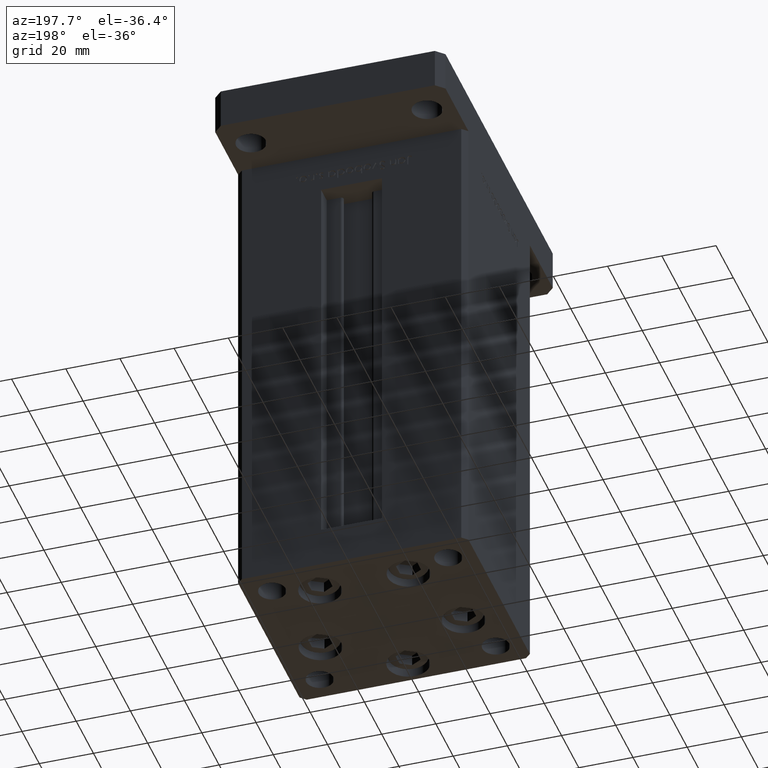
[diagram: clean part render]
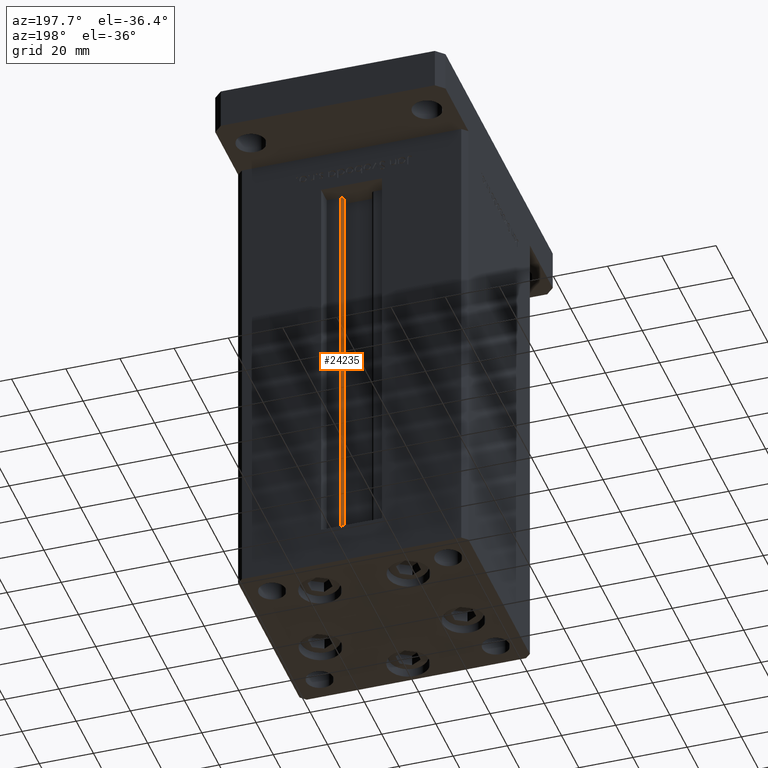
[diagram: same view with one face highlighted and labeled with its STEP entity id]
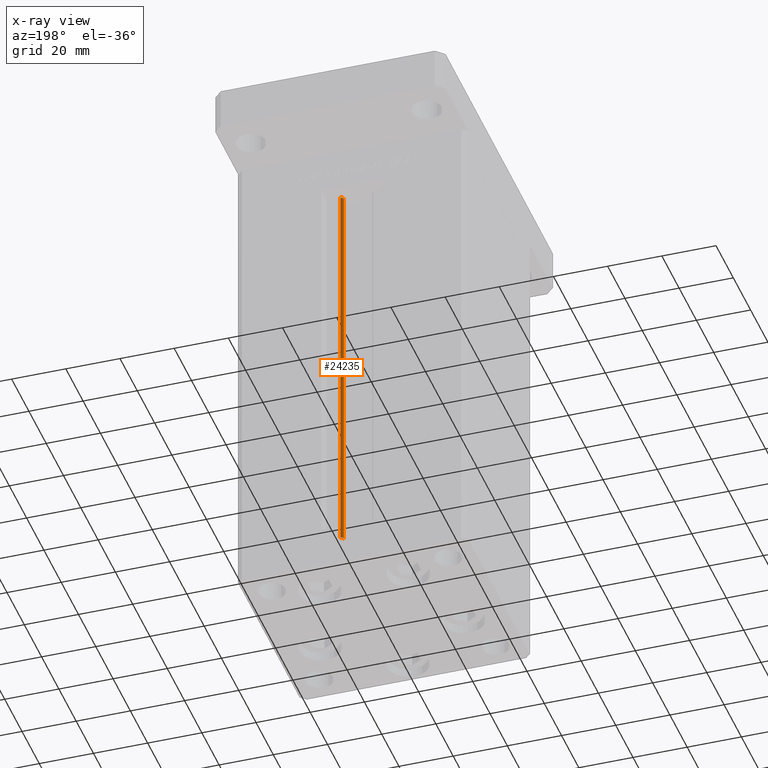
[diagram: x-ray of the same camera — body ghosted, the highlighted face saturated]
A machine part, auxiliary view. The second image highlights one B-rep face of the part: STEP entity #24235.
The next image is the same camera in x-ray: the body ghosted, the highlighted face saturated — about 0% of this face is hidden behind the body in this view.
In plain terms, the highlighted cylindrical surface (edge-blend (fillet) strip) has radius 0.9333 mm, axis along (0, 0, 1).
Its self-contained STEP definition (entity closure, byte-faithful):
#774 = CARTESIAN_POINT ( 'NONE',  ( 5.375042956467943611, 29.59999999999899245, 0.000000000000000000 ) ) ;
#1883 = ORIENTED_EDGE ( 'NONE', *, *, #11287, .F. ) ;
#2058 = CIRCLE ( 'NONE', #47931, 0.9333333333340015914 ) ;
#4121 = VECTOR ( 'NONE', #37700, 1000.000000000000000 ) ;
#4211 = CARTESIAN_POINT ( 'NONE',  ( 6.183333333333999704, 30.99999999999999289, 0.000000000000000000 ) ) ;
#4550 = ORIENTED_EDGE ( 'NONE', *, *, #37616, .T. ) ;
#5692 = DIRECTION ( 'NONE',  ( 0.000000000000000000, 0.000000000000000000, -1.000000000000000000 ) ) ;
#5784 = CARTESIAN_POINT ( 'NONE',  ( 6.183333333333999704, 30.99999999999999289, 148.5000000000000000 ) ) ;
#7223 = ORIENTED_EDGE ( 'NONE', *, *, #21924, .F. ) ;
#8713 = DIRECTION ( 'NONE',  ( -0.000000000000000000, -0.000000000000000000, -1.000000000000000000 ) ) ;
#10361 = CIRCLE ( 'NONE', #51099, 0.9333333333340015914 ) ;
#11287 = EDGE_CURVE ( 'NONE', #40228, #12335, #28031, .T. ) ;
#11687 = ORIENTED_EDGE ( 'NONE', *, *, #47937, .T. ) ;
#12335 = VERTEX_POINT ( 'NONE', #5784 ) ;
#14104 = CARTESIAN_POINT ( 'NONE',  ( 6.183333333333999704, 30.06666666666599141, 148.5000000000000000 ) ) ;
#15708 = EDGE_LOOP ( 'NONE', ( #1883, #7223, #11687, #4550 ) ) ;
#21747 = VERTEX_POINT ( 'NONE', #46755 ) ;
#21924 = EDGE_CURVE ( 'NONE', #21747, #40228, #10361, .T. ) ;
#24235 = ADVANCED_FACE ( 'NONE', ( #52205 ), #32103, .T. ) ;
#25591 = VECTOR ( 'NONE', #46078, 1000.000000000000000 ) ;
#28031 = LINE ( 'NONE', #40256, #4121 ) ;
#32103 = CYLINDRICAL_SURFACE ( 'NONE', #52911, 0.9333333333340015914 ) ;
#33917 = DIRECTION ( 'NONE',  ( 1.000000000000000000, 0.000000000000000000, 0.000000000000000000 ) ) ;
#35366 = DIRECTION ( 'NONE',  ( -0.000000000000000000, -0.000000000000000000, 1.000000000000000000 ) ) ;
#37616 = EDGE_CURVE ( 'NONE', #43182, #12335, #2058, .T. ) ;
#37700 = DIRECTION ( 'NONE',  ( -0.000000000000000000, -0.000000000000000000, 1.000000000000000000 ) ) ;
#40228 = VERTEX_POINT ( 'NONE', #4211 ) ;
#40256 = CARTESIAN_POINT ( 'NONE',  ( 6.183333333333999704, 30.99999999999999289, 0.000000000000000000 ) ) ;
#40474 = CARTESIAN_POINT ( 'NONE',  ( 6.183333333333999704, 30.06666666666599141, 0.000000000000000000 ) ) ;
#43182 = VERTEX_POINT ( 'NONE', #50583 ) ;
#46078 = DIRECTION ( 'NONE',  ( -0.000000000000000000, -0.000000000000000000, 1.000000000000000000 ) ) ;
#46755 = CARTESIAN_POINT ( 'NONE',  ( 5.375042956467943611, 29.59999999999899245, 0.000000000000000000 ) ) ;
#47931 = AXIS2_PLACEMENT_3D ( 'NONE', #14104, #5692, #50180 ) ;
#47937 = EDGE_CURVE ( 'NONE', #21747, #43182, #49601, .T. ) ;
#48660 = CARTESIAN_POINT ( 'NONE',  ( 6.183333333333999704, 30.06666666666599141, 0.000000000000000000 ) ) ;
#49601 = LINE ( 'NONE', #774, #25591 ) ;
#50180 = DIRECTION ( 'NONE',  ( 1.000000000000000000, 0.000000000000000000, 0.000000000000000000 ) ) ;
#50583 = CARTESIAN_POINT ( 'NONE',  ( 5.375042956467944499, 29.59999999999899245, 148.5000000000000000 ) ) ;
#51099 = AXIS2_PLACEMENT_3D ( 'NONE', #40474, #8713, #33917 ) ;
#51946 = DIRECTION ( 'NONE',  ( 1.000000000000000000, 0.000000000000000000, 0.000000000000000000 ) ) ;
#52205 = FACE_OUTER_BOUND ( 'NONE', #15708, .T. ) ;
#52911 = AXIS2_PLACEMENT_3D ( 'NONE', #48660, #35366, #51946 ) ;